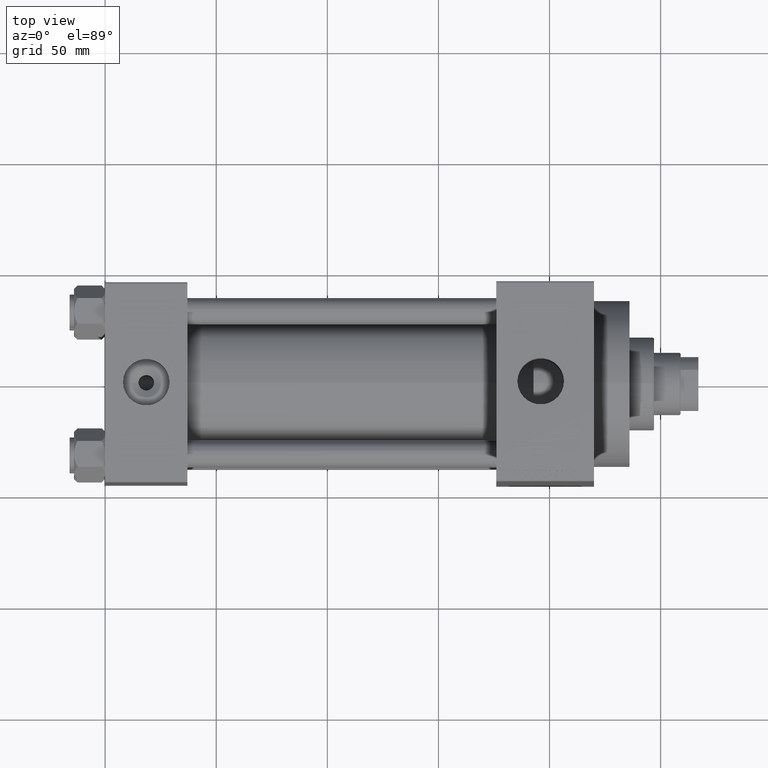
[diagram: clean part render]
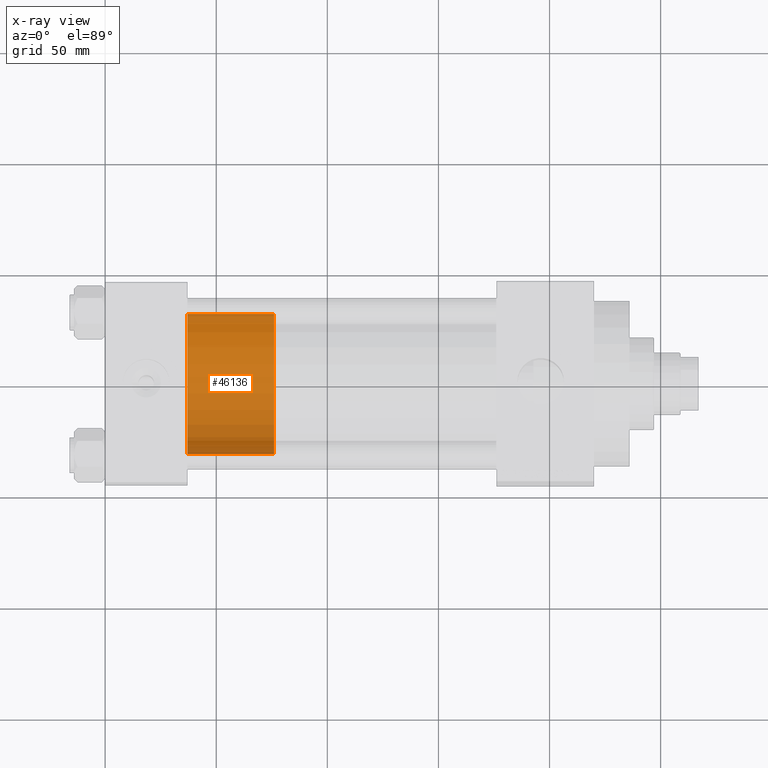
[diagram: x-ray — body ghosted, one internal face saturated and labeled with its STEP entity id]
A machine part, top view, then the same camera in x-ray: the body is ghosted and one INTERNAL B-rep face — a face not visible from any outside direction — is saturated and labeled: STEP entity #46136.
In plain terms, the highlighted cylindrical surface (partial cylindrical patch) has radius 31.5 mm, axis along (-1, 0, 0).
Its self-contained STEP definition (entity closure, byte-faithful):
#232 = DIRECTION ( 'NONE',  ( -0.000000000000000000, -0.000000000000000000, -1.000000000000000000 ) ) ;
#4104 = DIRECTION ( 'NONE',  ( -1.000000000000000000, 0.000000000000000000, 0.000000000000000000 ) ) ;
#4581 = CARTESIAN_POINT ( 'NONE',  ( 0.000000000000000000, 0.000000000000000000, 39.00000000000000000 ) ) ;
#5197 = CARTESIAN_POINT ( 'NONE',  ( -31.50000000000000000, 0.000000000000000000, 0.000000000000000000 ) ) ;
#5795 = CIRCLE ( 'NONE', #6570, 31.50000000000000000 ) ;
#6570 = AXIS2_PLACEMENT_3D ( 'NONE', #27820, #20621, #23979 ) ;
#8408 = DIRECTION ( 'NONE',  ( -0.000000000000000000, -0.000000000000000000, -1.000000000000000000 ) ) ;
#8838 = CARTESIAN_POINT ( 'NONE',  ( 31.50000000000000000, 3.857637417314162689E-15, 39.00000000000000000 ) ) ;
#9122 = CARTESIAN_POINT ( 'NONE',  ( 31.50000000000000000, 3.857637417314162689E-15, 0.000000000000000000 ) ) ;
#10526 = ORIENTED_EDGE ( 'NONE', *, *, #46185, .T. ) ;
#12591 = ORIENTED_EDGE ( 'NONE', *, *, #31374, .F. ) ;
#13471 = VERTEX_POINT ( 'NONE', #5197 ) ;
#16098 = ORIENTED_EDGE ( 'NONE', *, *, #35437, .F. ) ;
#19353 = VECTOR ( 'NONE', #35164, 1000.000000000000000 ) ;
#19435 = FACE_OUTER_BOUND ( 'NONE', #31981, .T. ) ;
#19617 = ORIENTED_EDGE ( 'NONE', *, *, #19946, .T. ) ;
#19946 = EDGE_CURVE ( 'NONE', #35565, #29701, #46990, .T. ) ;
#20526 = LINE ( 'NONE', #38525, #19353 ) ;
#20621 = DIRECTION ( 'NONE',  ( 0.000000000000000000, 0.000000000000000000, 1.000000000000000000 ) ) ;
#23979 = DIRECTION ( 'NONE',  ( 1.000000000000000000, 0.000000000000000000, 0.000000000000000000 ) ) ;
#24337 = VERTEX_POINT ( 'NONE', #47253 ) ;
#25229 = VECTOR ( 'NONE', #232, 1000.000000000000000 ) ;
#26125 = DIRECTION ( 'NONE',  ( 1.000000000000000000, 0.000000000000000000, 0.000000000000000000 ) ) ;
#27820 = CARTESIAN_POINT ( 'NONE',  ( 0.000000000000000000, 0.000000000000000000, 0.000000000000000000 ) ) ;
#29701 = VERTEX_POINT ( 'NONE', #9122 ) ;
#29726 = CARTESIAN_POINT ( 'NONE',  ( 0.000000000000000000, 0.000000000000000000, 39.00000000000000000 ) ) ;
#31374 = EDGE_CURVE ( 'NONE', #24337, #13471, #20526, .T. ) ;
#31981 = EDGE_LOOP ( 'NONE', ( #16098, #19617, #10526, #12591 ) ) ;
#33069 = CARTESIAN_POINT ( 'NONE',  ( 31.50000000000000000, 3.857637417314162689E-15, 39.00000000000000000 ) ) ;
#34056 = CIRCLE ( 'NONE', #37109, 31.50000000000000000 ) ;
#35164 = DIRECTION ( 'NONE',  ( -0.000000000000000000, -0.000000000000000000, -1.000000000000000000 ) ) ;
#35437 = EDGE_CURVE ( 'NONE', #35565, #24337, #34056, .T. ) ;
#35565 = VERTEX_POINT ( 'NONE', #8838 ) ;
#36976 = CYLINDRICAL_SURFACE ( 'NONE', #40278, 31.50000000000000000 ) ;
#37109 = AXIS2_PLACEMENT_3D ( 'NONE', #29726, #44358, #26125 ) ;
#38525 = CARTESIAN_POINT ( 'NONE',  ( -31.50000000000000000, 0.000000000000000000, 39.00000000000000000 ) ) ;
#40278 = AXIS2_PLACEMENT_3D ( 'NONE', #4581, #8408, #4104 ) ;
#44358 = DIRECTION ( 'NONE',  ( 0.000000000000000000, 0.000000000000000000, 1.000000000000000000 ) ) ;
#46136 = ADVANCED_FACE ( 'NONE', ( #19435 ), #36976, .T. ) ;
#46185 = EDGE_CURVE ( 'NONE', #29701, #13471, #5795, .T. ) ;
#46990 = LINE ( 'NONE', #33069, #25229 ) ;
#47253 = CARTESIAN_POINT ( 'NONE',  ( -31.50000000000000000, 0.000000000000000000, 39.00000000000000000 ) ) ;